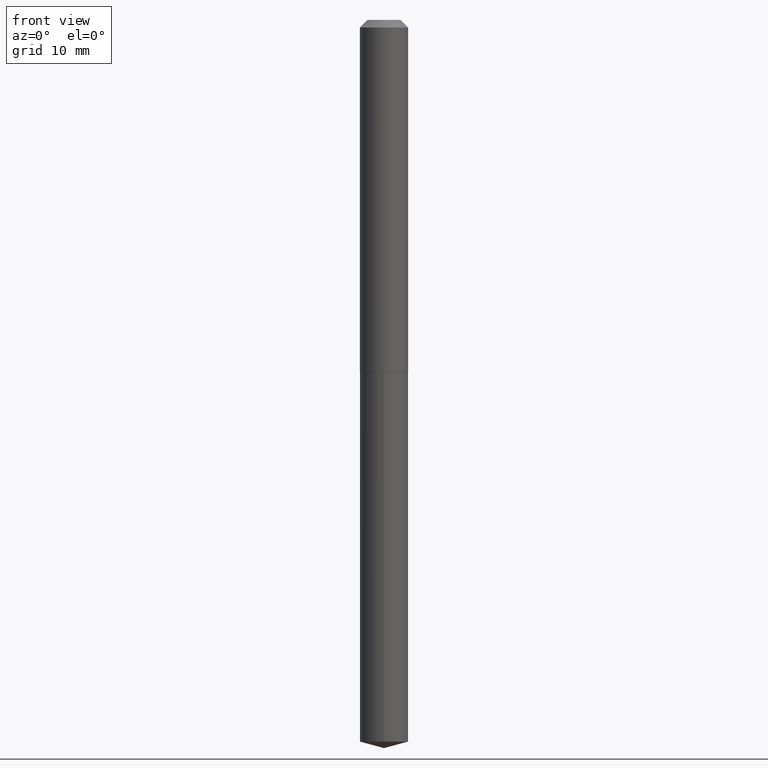
[diagram: clean part render]
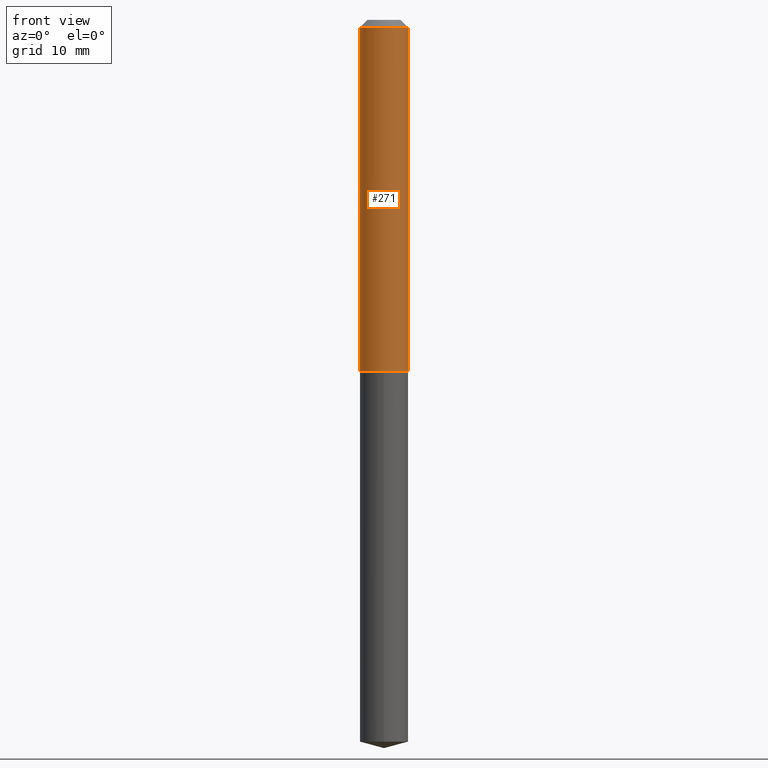
[diagram: same view with one face highlighted and labeled with its STEP entity id]
A machine part, front view. The second image highlights one B-rep face of the part: STEP entity #271.
In plain terms, the highlighted cylindrical surface (edge-blend (fillet) strip) has radius 2.5273 mm, axis along (-0, 0, 1).
Its self-contained STEP definition (entity closure, byte-faithful):
#8 = ORIENTED_EDGE ( 'NONE', *, *, #20, .F. ) ;
#11 = ORIENTED_EDGE ( 'NONE', *, *, #222, .T. ) ;
#20 = EDGE_CURVE ( 'NONE', #152, #95, #140, .T. ) ;
#21 = DIRECTION ( 'NONE',  ( -2.445468806185136597E-29, 3.491481338843145583E-15, 1.000000000000000000 ) ) ;
#24 = DIRECTION ( 'NONE',  ( 1.000000000000000000, -6.982962677686266711E-15, 4.876176775795936353E-29 ) ) ;
#31 = CARTESIAN_POINT ( 'NONE',  ( 7.642090019328598283E-31, -1.091087918388489651E-16, -0.03125000000000019429 ) ) ;
#41 = CARTESIAN_POINT ( 'NONE',  ( -0.09950000000000000511, -1.876269733495272342E-15, -0.03125000000000019429 ) ) ;
#49 = DIRECTION ( 'NONE',  ( -2.445468806185136877E-29, 3.491481338843145188E-15, 1.000000000000000000 ) ) ;
#57 = FACE_OUTER_BOUND ( 'NONE', #119, .T. ) ;
#64 = VERTEX_POINT ( 'NONE', #283 ) ;
#69 = VERTEX_POINT ( 'NONE', #228 ) ;
#95 = VERTEX_POINT ( 'NONE', #41 ) ;
#104 = CIRCLE ( 'NONE', #244, 0.09950000000000017164 ) ;
#114 = CARTESIAN_POINT ( 'NONE',  ( 3.542261565759171006E-29, -5.057410719314297787E-15, -1.448500000000000343 ) ) ;
#115 = DIRECTION ( 'NONE',  ( 1.000000000000000000, -6.982962677686266711E-15, 0.000000000000000000 ) ) ;
#116 = VECTOR ( 'NONE', #49, 39.37007874015748143 ) ;
#119 = EDGE_LOOP ( 'NONE', ( #8, #11, #367, #328 ) ) ;
#140 = LINE ( 'NONE', #338, #116 ) ;
#146 = CYLINDRICAL_SURFACE ( 'NONE', #290, 0.09950000000000008837 ) ;
#152 = VERTEX_POINT ( 'NONE', #310 ) ;
#153 = DIRECTION ( 'NONE',  ( -2.445468806185136597E-29, 3.491481338843145583E-15, 1.000000000000000000 ) ) ;
#157 = DIRECTION ( 'NONE',  ( -2.445468806185136877E-29, 3.491481338843145188E-15, 1.000000000000000000 ) ) ;
#163 = AXIS2_PLACEMENT_3D ( 'NONE', #31, #153, #115 ) ;
#203 = DIRECTION ( 'NONE',  ( -2.445468806185136597E-29, 3.491481338843145583E-15, 1.000000000000000000 ) ) ;
#222 = EDGE_CURVE ( 'NONE', #152, #69, #104, .T. ) ;
#228 = CARTESIAN_POINT ( 'NONE',  ( 0.09950000000000017164, -5.752215505744083029E-15, -1.448500000000000343 ) ) ;
#234 = DIRECTION ( 'NONE',  ( 1.000000000000000000, -6.982962677686266711E-15, 0.000000000000000000 ) ) ;
#244 = AXIS2_PLACEMENT_3D ( 'NONE', #114, #21, #234 ) ;
#271 = ADVANCED_FACE ( 'NONE', ( #57 ), #146, .T. ) ;
#283 = CARTESIAN_POINT ( 'NONE',  ( 0.09950000000000000511, -8.039135782686324687E-16, -0.03125000000000019429 ) ) ;
#290 = AXIS2_PLACEMENT_3D ( 'NONE', #323, #203, #24 ) ;
#310 = CARTESIAN_POINT ( 'NONE',  ( -0.09950000000000017164, -4.350420697232997080E-15, -1.448500000000000343 ) ) ;
#323 = CARTESIAN_POINT ( 'NONE',  ( 0.000000000000000000, 0.000000000000000000, 0.000000000000000000 ) ) ;
#328 = ORIENTED_EDGE ( 'NONE', *, *, #366, .F. ) ;
#330 = CARTESIAN_POINT ( 'NONE',  ( 0.09950000000000008837, -6.948047864297841570E-16, 4.851795891916960794E-30 ) ) ;
#338 = CARTESIAN_POINT ( 'NONE',  ( -0.09950000000000008837, 7.069900220813003129E-16, -4.894340414803635936E-30 ) ) ;
#349 = CIRCLE ( 'NONE', #163, 0.09950000000000000511 ) ;
#362 = LINE ( 'NONE', #330, #381 ) ;
#366 = EDGE_CURVE ( 'NONE', #95, #64, #349, .T. ) ;
#367 = ORIENTED_EDGE ( 'NONE', *, *, #375, .T. ) ;
#375 = EDGE_CURVE ( 'NONE', #69, #64, #362, .T. ) ;
#381 = VECTOR ( 'NONE', #157, 39.37007874015748143 ) ;